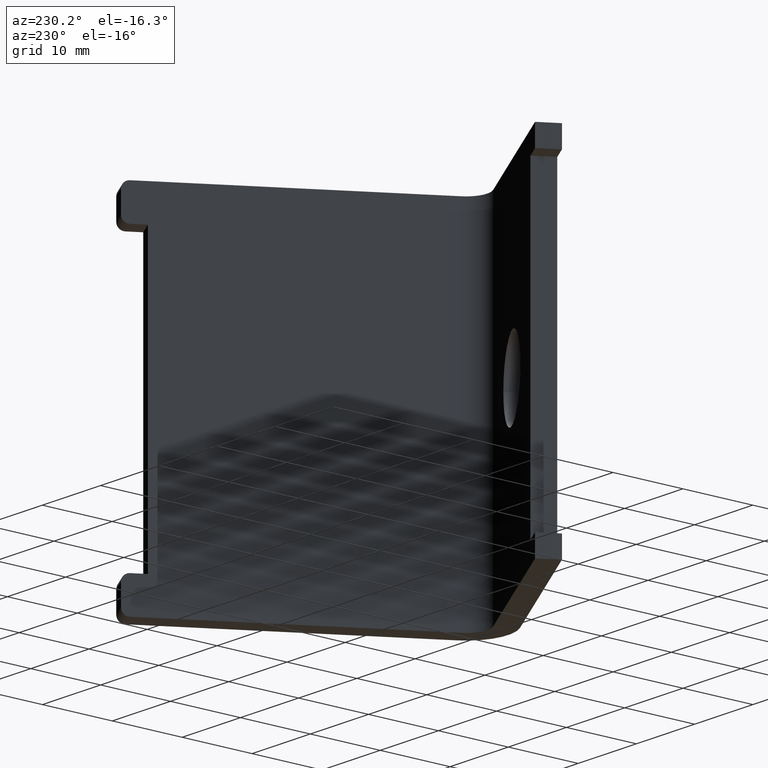
[diagram: clean part render]
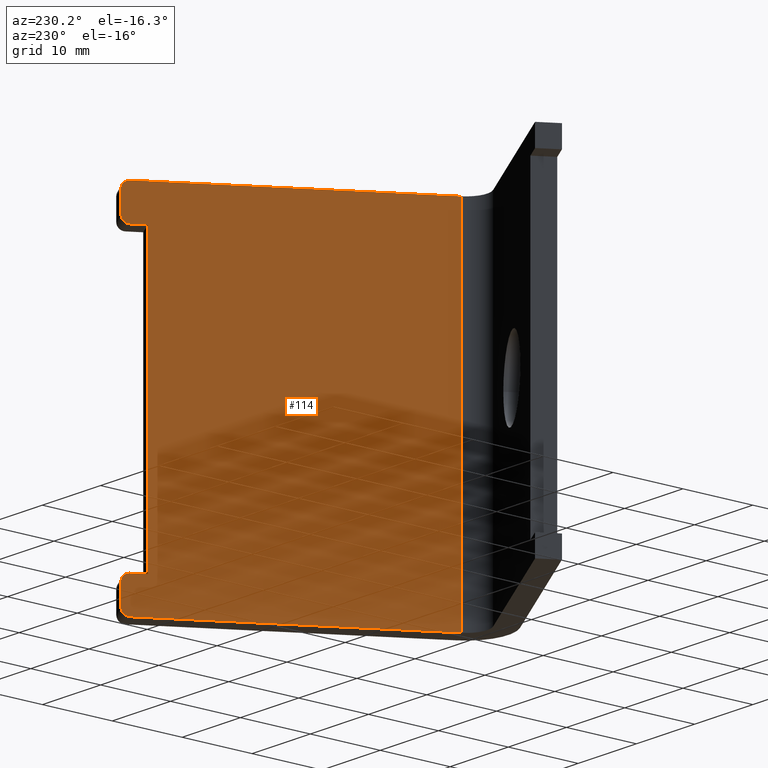
[diagram: same view with one face highlighted and labeled with its STEP entity id]
A machine part, auxiliary view. The second image highlights one B-rep face of the part: STEP entity #114.
In plain terms, the highlighted planar face has unit normal (-0.866, 0.5, 0).
Its self-contained STEP definition (entity closure, byte-faithful):
#4 = EDGE_CURVE ( 'NONE', #802, #139, #573, .T. ) ;
#8 = CARTESIAN_POINT ( 'NONE',  ( 631.0831529111263762, 1062.853837226374935, -21.00000000000000000 ) ) ;
#18 = EDGE_CURVE ( 'NONE', #276, #243, #673, .T. ) ;
#33 = ORIENTED_EDGE ( 'NONE', *, *, #223, .T. ) ;
#51 = CARTESIAN_POINT ( 'NONE',  ( 610.5848748840967346, 1027.349778215887454, 25.00000000000000000 ) ) ;
#55 = DIRECTION ( 'NONE',  ( 0.5000000000000401901, 0.8660254037844155039, 0.000000000000000000 ) ) ;
#61 = DIRECTION ( 'NONE',  ( -0.8660254037844317132, 0.5000000000000124345, -0.000000000000000000 ) ) ;
#82 = ORIENTED_EDGE ( 'NONE', *, *, #234, .T. ) ;
#84 = CIRCLE ( 'NONE', #108, 1.000000000000031530 ) ;
#88 = VECTOR ( 'NONE', #159, 1000.000000000000000 ) ;
#102 = VERTEX_POINT ( 'NONE', #750 ) ;
#108 = AXIS2_PLACEMENT_3D ( 'NONE', #194, #288, #479 ) ;
#109 = CARTESIAN_POINT ( 'NONE',  ( 631.0831529111263762, 1062.853837226374935, 19.99999999999999645 ) ) ;
#110 = VECTOR ( 'NONE', #184, 1000.000000000000000 ) ;
#114 = ADVANCED_FACE ( 'NONE', ( #318 ), #190, .T. ) ;
#118 = CARTESIAN_POINT ( 'NONE',  ( 631.0831529111263762, 1062.853837226374935, 23.99999999999999645 ) ) ;
#131 = DIRECTION ( 'NONE',  ( -0.5000000000000124345, -0.8660254037844314912, 0.000000000000000000 ) ) ;
#139 = VERTEX_POINT ( 'NONE', #733 ) ;
#149 = LINE ( 'NONE', #202, #592 ) ;
#159 = DIRECTION ( 'NONE',  ( -0.000000000000000000, -0.000000000000000000, -1.000000000000000000 ) ) ;
#183 = ORIENTED_EDGE ( 'NONE', *, *, #703, .F. ) ;
#184 = DIRECTION ( 'NONE',  ( 0.5000000000000041078, 0.8660254037844363761, 0.000000000000000000 ) ) ;
#187 = AXIS2_PLACEMENT_3D ( 'NONE', #533, #61, #55 ) ;
#190 = PLANE ( 'NONE',  #295 ) ;
#194 = CARTESIAN_POINT ( 'NONE',  ( 630.5831529111263762, 1061.987811822590629, -21.00000000000000000 ) ) ;
#198 = CIRCLE ( 'NONE', #706, 1.000000000000031530 ) ;
#201 = ORIENTED_EDGE ( 'NONE', *, *, #359, .T. ) ;
#202 = CARTESIAN_POINT ( 'NONE',  ( 632.5831529172152159, 1065.451913448274581, 19.99999999999999645 ) ) ;
#213 = ORIENTED_EDGE ( 'NONE', *, *, #422, .T. ) ;
#223 = EDGE_CURVE ( 'NONE', #276, #802, #84, .T. ) ;
#231 = EDGE_CURVE ( 'NONE', #789, #403, #149, .T. ) ;
#234 = EDGE_CURVE ( 'NONE', #139, #102, #198, .T. ) ;
#243 = VERTEX_POINT ( 'NONE', #775 ) ;
#245 = CARTESIAN_POINT ( 'NONE',  ( 631.0831529111263762, 1062.853837226374935, 20.99999999999999645 ) ) ;
#256 = DIRECTION ( 'NONE',  ( -0.5000000000000041078, -0.8660254037844363761, 0.000000000000000000 ) ) ;
#257 = CARTESIAN_POINT ( 'NONE',  ( 610.5848748840967346, 1027.349778215887454, -25.00000000000000000 ) ) ;
#276 = VERTEX_POINT ( 'NONE', #569 ) ;
#288 = DIRECTION ( 'NONE',  ( -0.8660254037844317132, 0.5000000000000124345, -0.000000000000000000 ) ) ;
#295 = AXIS2_PLACEMENT_3D ( 'NONE', #756, #832, #256 ) ;
#301 = CARTESIAN_POINT ( 'NONE',  ( 630.5831529111263762, 1061.987811822590629, 23.99999999999999645 ) ) ;
#318 = FACE_OUTER_BOUND ( 'NONE', #552, .T. ) ;
#325 = DIRECTION ( 'NONE',  ( 0.5000000000000041078, 0.8660254037844363761, 0.000000000000000000 ) ) ;
#331 = ORIENTED_EDGE ( 'NONE', *, *, #4, .T. ) ;
#332 = ORIENTED_EDGE ( 'NONE', *, *, #635, .F. ) ;
#339 = CIRCLE ( 'NONE', #892, 1.000000000000031530 ) ;
#359 = EDGE_CURVE ( 'NONE', #634, #696, #339, .T. ) ;
#379 = DIRECTION ( 'NONE',  ( -0.000000000000000000, -0.000000000000000000, -1.000000000000000000 ) ) ;
#393 = CARTESIAN_POINT ( 'NONE',  ( 630.5831529111263762, 1061.987811822590402, 24.99999999999999645 ) ) ;
#395 = DIRECTION ( 'NONE',  ( 0.000000000000000000, 0.000000000000000000, -1.000000000000000000 ) ) ;
#403 = VERTEX_POINT ( 'NONE', #671 ) ;
#422 = EDGE_CURVE ( 'NONE', #547, #634, #675, .T. ) ;
#425 = ORIENTED_EDGE ( 'NONE', *, *, #440, .T. ) ;
#440 = EDGE_CURVE ( 'NONE', #830, #789, #839, .T. ) ;
#458 = DIRECTION ( 'NONE',  ( 0.5000000000000401901, 0.8660254037844155039, -2.220446049250243156E-13 ) ) ;
#461 = LINE ( 'NONE', #257, #110 ) ;
#479 = DIRECTION ( 'NONE',  ( 0.5000000000000401901, 0.8660254037844155039, -2.220446049250243156E-13 ) ) ;
#503 = VECTOR ( 'NONE', #395, 1000.000000000000000 ) ;
#512 = DIRECTION ( 'NONE',  ( -0.8660254037844317132, 0.5000000000000124345, -0.000000000000000000 ) ) ;
#525 = VECTOR ( 'NONE', #379, 1000.000000000000000 ) ;
#527 = DIRECTION ( 'NONE',  ( 0.000000000000000000, 0.000000000000000000, -1.000000000000000000 ) ) ;
#532 = DIRECTION ( 'NONE',  ( -0.5000000000000124345, -0.8660254037844314912, 0.000000000000000000 ) ) ;
#533 = CARTESIAN_POINT ( 'NONE',  ( 630.5831529111263762, 1061.987811822590629, 20.99999999999999645 ) ) ;
#541 = ORIENTED_EDGE ( 'NONE', *, *, #731, .T. ) ;
#547 = VERTEX_POINT ( 'NONE', #883 ) ;
#552 = EDGE_LOOP ( 'NONE', ( #183, #332, #213, #201, #761, #425, #627, #541, #784, #33, #331, #82 ) ) ;
#569 = CARTESIAN_POINT ( 'NONE',  ( 630.5831529111263762, 1061.987811822590402, -20.00000000000000000 ) ) ;
#573 = LINE ( 'NONE', #798, #836 ) ;
#578 = LINE ( 'NONE', #729, #525 ) ;
#588 = LINE ( 'NONE', #663, #88 ) ;
#592 = VECTOR ( 'NONE', #131, 1000.000000000000114 ) ;
#627 = ORIENTED_EDGE ( 'NONE', *, *, #231, .T. ) ;
#630 = DIRECTION ( 'NONE',  ( 0.5000000000000401901, 0.8660254037844155039, 0.000000000000000000 ) ) ;
#634 = VERTEX_POINT ( 'NONE', #393 ) ;
#635 = EDGE_CURVE ( 'NONE', #547, #668, #588, .T. ) ;
#637 = CARTESIAN_POINT ( 'NONE',  ( 630.5831529111263762, 1061.987811822590402, 19.99999999999999645 ) ) ;
#638 = VECTOR ( 'NONE', #325, 1000.000000000000000 ) ;
#644 = DIRECTION ( 'NONE',  ( -0.8660254037844317132, 0.5000000000000124345, -0.000000000000000000 ) ) ;
#663 = CARTESIAN_POINT ( 'NONE',  ( 612.0848748840968483, 1029.947854427240600, 25.00000000000000000 ) ) ;
#668 = VERTEX_POINT ( 'NONE', #893 ) ;
#671 = CARTESIAN_POINT ( 'NONE',  ( 629.5831529068967711, 1060.255761007695810, 19.99999999999999645 ) ) ;
#673 = LINE ( 'NONE', #815, #906 ) ;
#675 = LINE ( 'NONE', #51, #638 ) ;
#693 = CARTESIAN_POINT ( 'NONE',  ( 630.5831529111263762, 1061.987811822590629, -24.00000000000000000 ) ) ;
#696 = VERTEX_POINT ( 'NONE', #118 ) ;
#701 = EDGE_CURVE ( 'NONE', #696, #830, #759, .T. ) ;
#703 = EDGE_CURVE ( 'NONE', #668, #102, #461, .T. ) ;
#706 = AXIS2_PLACEMENT_3D ( 'NONE', #693, #644, #630 ) ;
#729 = CARTESIAN_POINT ( 'NONE',  ( 629.5831529068967711, 1060.255761007695810, 25.00000000000000000 ) ) ;
#731 = EDGE_CURVE ( 'NONE', #403, #243, #578, .T. ) ;
#733 = CARTESIAN_POINT ( 'NONE',  ( 631.0831529111263762, 1062.853837226374935, -24.00000000000000000 ) ) ;
#750 = CARTESIAN_POINT ( 'NONE',  ( 630.5831529111263762, 1061.987811822590402, -25.00000000000000000 ) ) ;
#756 = CARTESIAN_POINT ( 'NONE',  ( 610.5848748840967346, 1027.349778215887454, 25.00000000000000000 ) ) ;
#759 = LINE ( 'NONE', #109, #503 ) ;
#761 = ORIENTED_EDGE ( 'NONE', *, *, #701, .T. ) ;
#775 = CARTESIAN_POINT ( 'NONE',  ( 629.5831529068967711, 1060.255761007695810, -19.99999999999999645 ) ) ;
#784 = ORIENTED_EDGE ( 'NONE', *, *, #18, .F. ) ;
#789 = VERTEX_POINT ( 'NONE', #637 ) ;
#798 = CARTESIAN_POINT ( 'NONE',  ( 631.0831529111263762, 1062.853837226374935, -25.00000000000000000 ) ) ;
#802 = VERTEX_POINT ( 'NONE', #8 ) ;
#815 = CARTESIAN_POINT ( 'NONE',  ( 632.5831529172152159, 1065.451913448274581, -20.00000000000000000 ) ) ;
#830 = VERTEX_POINT ( 'NONE', #245 ) ;
#832 = DIRECTION ( 'NONE',  ( -0.8660254037844363761, 0.5000000000000041078, 0.000000000000000000 ) ) ;
#836 = VECTOR ( 'NONE', #527, 1000.000000000000000 ) ;
#839 = CIRCLE ( 'NONE', #187, 1.000000000000031530 ) ;
#883 = CARTESIAN_POINT ( 'NONE',  ( 612.0848748840968483, 1029.947854427240600, 25.00000000000000000 ) ) ;
#892 = AXIS2_PLACEMENT_3D ( 'NONE', #301, #512, #458 ) ;
#893 = CARTESIAN_POINT ( 'NONE',  ( 612.0848748840968483, 1029.947854427240600, -25.00000000000000000 ) ) ;
#906 = VECTOR ( 'NONE', #532, 1000.000000000000114 ) ;